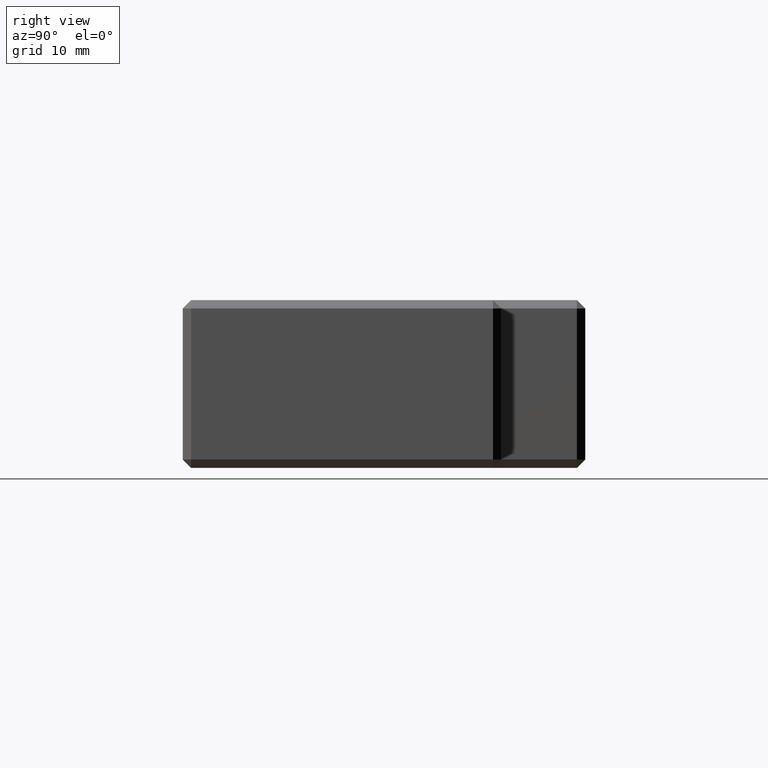
[diagram: clean part render]
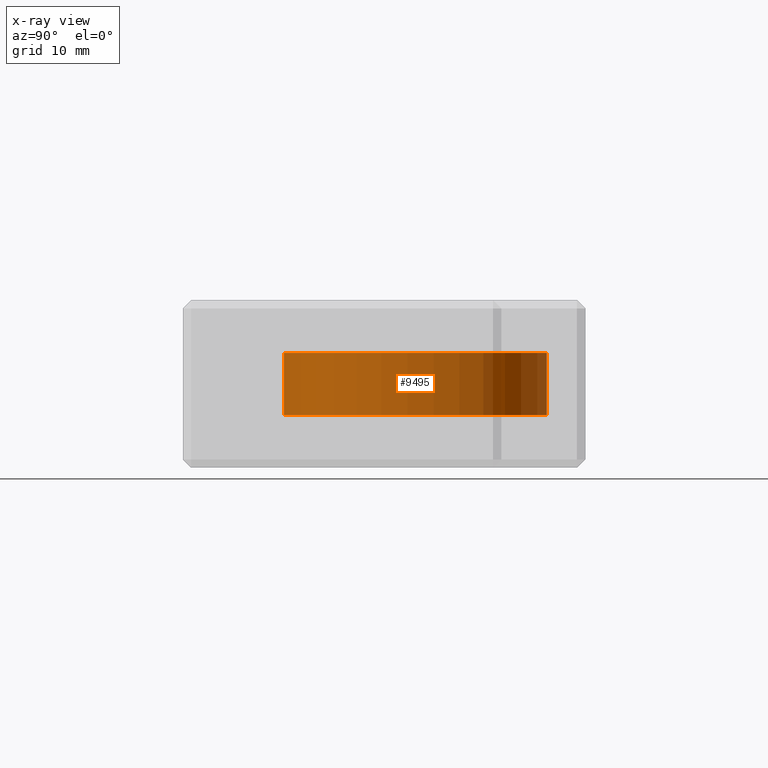
[diagram: x-ray — body ghosted, one internal face saturated and labeled with its STEP entity id]
A machine part, right view, then the same camera in x-ray: the body is ghosted and one INTERNAL B-rep face — a face not visible from any outside direction — is saturated and labeled: STEP entity #9495.
In plain terms, the highlighted cylindrical surface (partial cylindrical patch) has radius 16 mm, axis along (0, -0, 1).
Its self-contained STEP definition (entity closure, byte-faithful):
#121 = ORIENTED_EDGE ( 'NONE', *, *, #196, .T. ) ;
#155 = ORIENTED_EDGE ( 'NONE', *, *, #157, .F. ) ;
#157 = EDGE_CURVE ( 'NONE', #9506, #9467, #2259, .T. ) ;
#159 = ORIENTED_EDGE ( 'NONE', *, *, #9474, .T. ) ;
#196 = EDGE_CURVE ( 'NONE', #9511, #9440, #2286, .T. ) ;
#2256 = DIRECTION ( 'NONE',  ( 2.388870024724878100E-016, -5.631311923688379000E-016, 1.000000000000000000 ) ) ;
#2257 = VECTOR ( 'NONE', #2256, 1000.000000000000000 ) ;
#2258 = CARTESIAN_POINT ( 'NONE',  ( -4.307003376254597200, 12.59059631533614800, 19.58001605136441000 ) ) ;
#2259 = LINE ( 'NONE', #2258, #2257 ) ;
#2283 = DIRECTION ( 'NONE',  ( 2.388870024724878100E-016, -5.631311923688379000E-016, 1.000000000000000000 ) ) ;
#2284 = VECTOR ( 'NONE', #2283, 1000.000000000000000 ) ;
#2285 = CARTESIAN_POINT ( 'NONE',  ( 4.307003376254635400, 43.40940368466382200, 19.58001605136441000 ) ) ;
#2286 = LINE ( 'NONE', #2285, #2284 ) ;
#8076 = CARTESIAN_POINT ( 'NONE',  ( 4.307003376254628300, 43.40940368466382200, 3.700000000000032200 ) ) ;
#8096 = CIRCLE ( 'NONE', #8160, 16.00000000000000400 ) ;
#8107 = CARTESIAN_POINT ( 'NONE',  ( -4.307003376254601600, 12.59059631533616000, 3.700000000000016600 ) ) ;
#8157 = DIRECTION ( 'NONE',  ( 0.2691877110159133800, 0.9630877302914896400, -8.131516293641282000E-017 ) ) ;
#8158 = DIRECTION ( 'NONE',  ( -2.388870024724878100E-016, 5.631311923688379000E-016, -1.000000000000000000 ) ) ;
#8159 = CARTESIAN_POINT ( 'NONE',  ( 1.457890443705951600E-014, 27.99999999999999300, 3.700000000000024600 ) ) ;
#8160 = AXIS2_PLACEMENT_3D ( 'NONE', #8159, #8158, #8157 ) ;
#8162 = DIRECTION ( 'NONE',  ( -0.2691877110159133800, -0.9630877302914896400, 8.131516293641282000E-017 ) ) ;
#8163 = DIRECTION ( 'NONE',  ( 2.388870024724878100E-016, -5.631311923688379000E-016, 1.000000000000000000 ) ) ;
#8164 = CARTESIAN_POINT ( 'NONE',  ( 1.281114061876310200E-014, 28.00000000000000000, -3.699999999999996600 ) ) ;
#8165 = AXIS2_PLACEMENT_3D ( 'NONE', #8164, #8163, #8162 ) ;
#8166 = CIRCLE ( 'NONE', #8165, 16.00000000000000400 ) ;
#8168 = CARTESIAN_POINT ( 'NONE',  ( -4.307003376254602500, 12.59059631533616200, -3.699999999999995300 ) ) ;
#8177 = DIRECTION ( 'NONE',  ( -0.2691877110159133800, -0.9630877302914896400, 0.0000000000000000000 ) ) ;
#8178 = DIRECTION ( 'NONE',  ( 2.388870024724878100E-016, -5.631311923688379000E-016, 1.000000000000000000 ) ) ;
#8179 = CARTESIAN_POINT ( 'NONE',  ( 1.837243387078494200E-014, 27.99999999999998600, 19.58001605136441000 ) ) ;
#8180 = AXIS2_PLACEMENT_3D ( 'NONE', #8179, #8178, #8177 ) ;
#8182 = CYLINDRICAL_SURFACE ( 'NONE', #8180, 16.00000000000000400 ) ;
#8187 = FACE_OUTER_BOUND ( 'NONE', #9497, .T. ) ;
#8223 = CARTESIAN_POINT ( 'NONE',  ( 4.307003376254630000, 43.40940368466383600, -3.699999999999989100 ) ) ;
#9440 = VERTEX_POINT ( 'NONE', #8076 ) ;
#9467 = VERTEX_POINT ( 'NONE', #8107 ) ;
#9474 = EDGE_CURVE ( 'NONE', #9440, #9467, #8096, .T. ) ;
#9495 = ADVANCED_FACE ( 'NONE', ( #8187 ), #8182, .T. ) ;
#9497 = EDGE_LOOP ( 'NONE', ( #9498, #121, #159, #155 ) ) ;
#9498 = ORIENTED_EDGE ( 'NONE', *, *, #9507, .T. ) ;
#9506 = VERTEX_POINT ( 'NONE', #8168 ) ;
#9507 = EDGE_CURVE ( 'NONE', #9506, #9511, #8166, .T. ) ;
#9511 = VERTEX_POINT ( 'NONE', #8223 ) ;